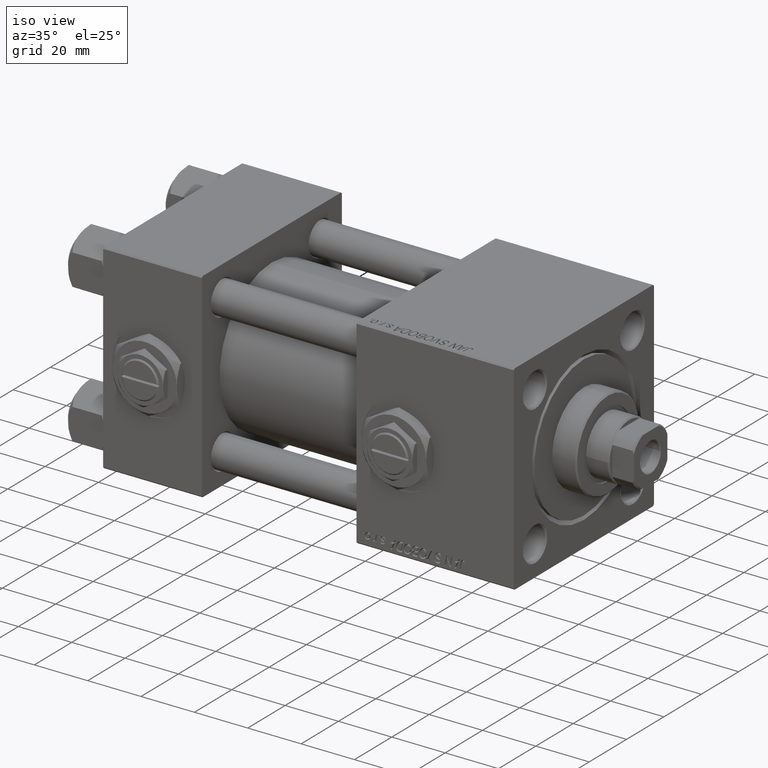
[diagram: clean part render]
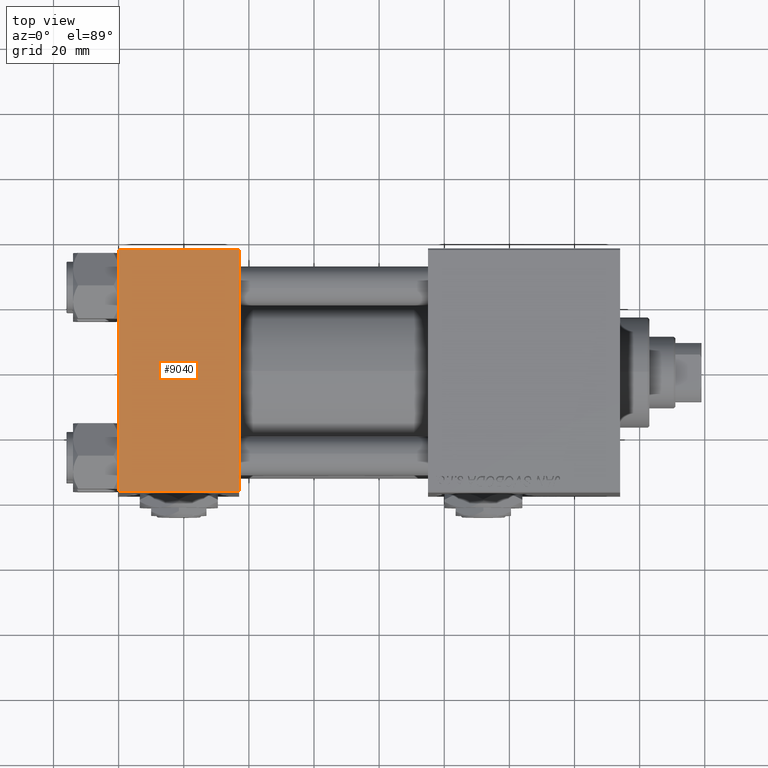
[diagram: tour spotlight — one face highlighted and labeled with its STEP entity id]
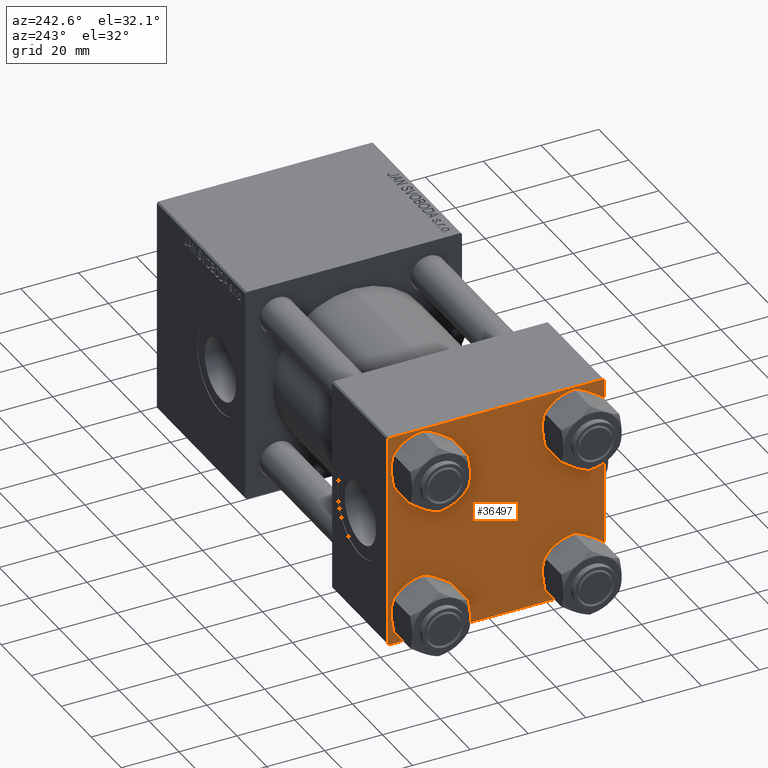
[diagram: tour spotlight — one face highlighted and labeled with its STEP entity id]
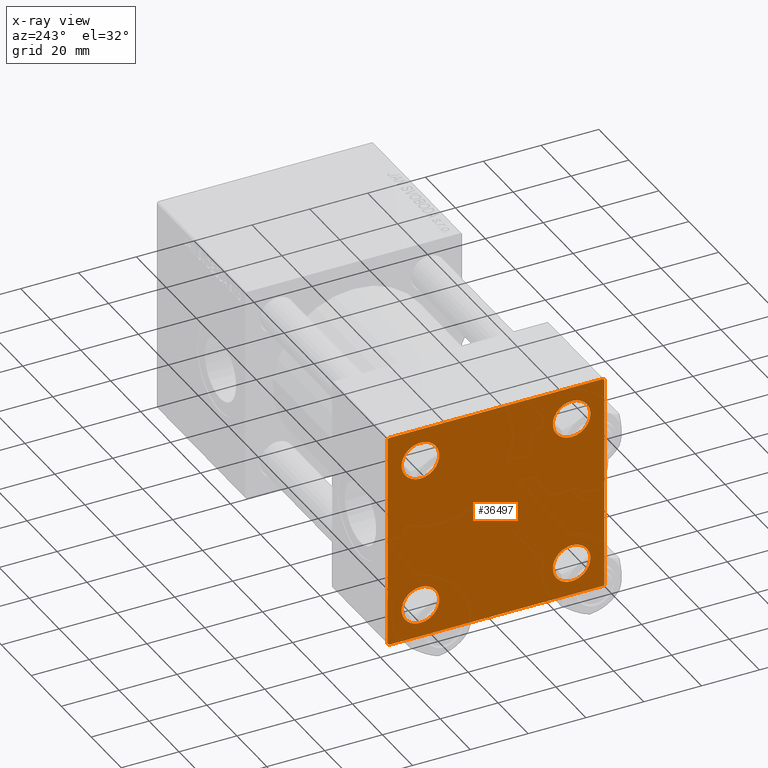
[diagram: x-ray of the same camera — body ghosted, this tour face saturated]
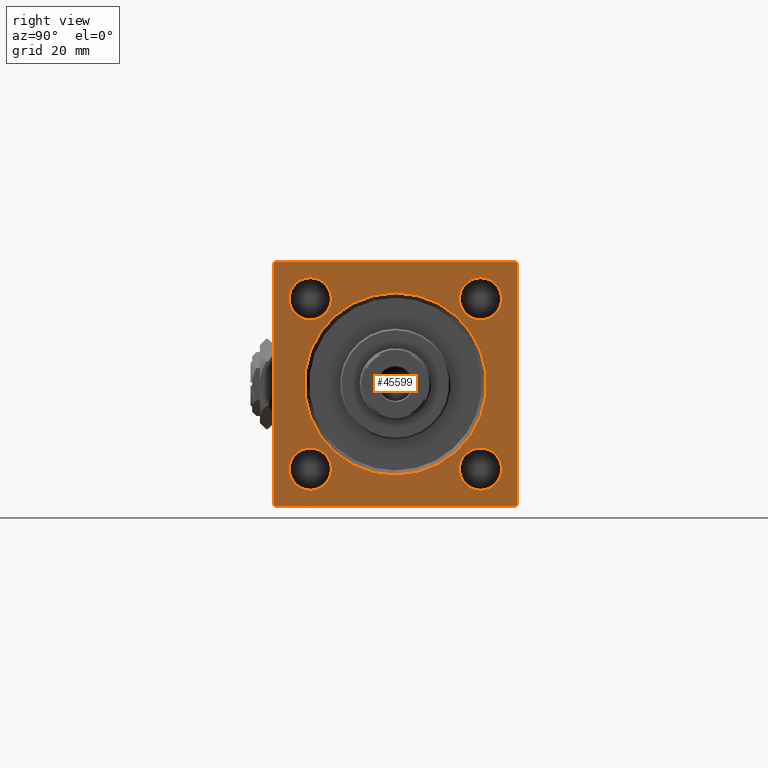
[diagram: tour spotlight — one face highlighted and labeled with its STEP entity id]
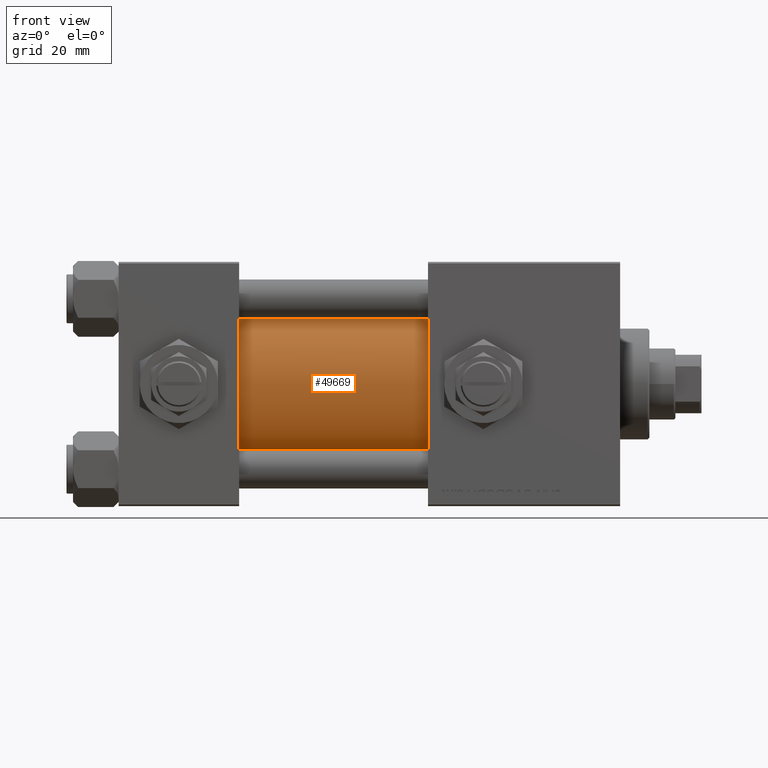
[diagram: tour spotlight — one face highlighted and labeled with its STEP entity id]
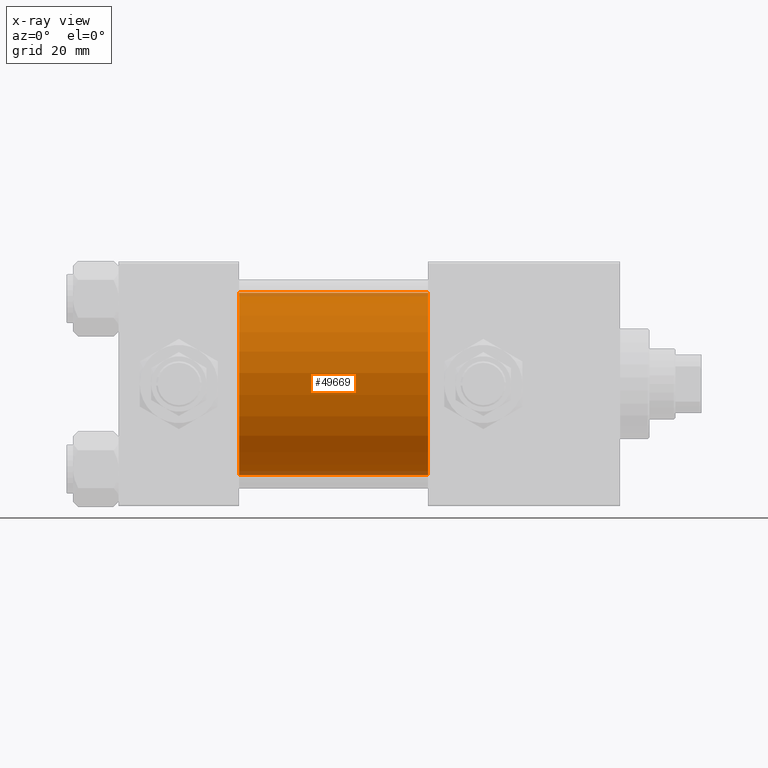
[diagram: x-ray of the same camera — body ghosted, this tour face saturated]
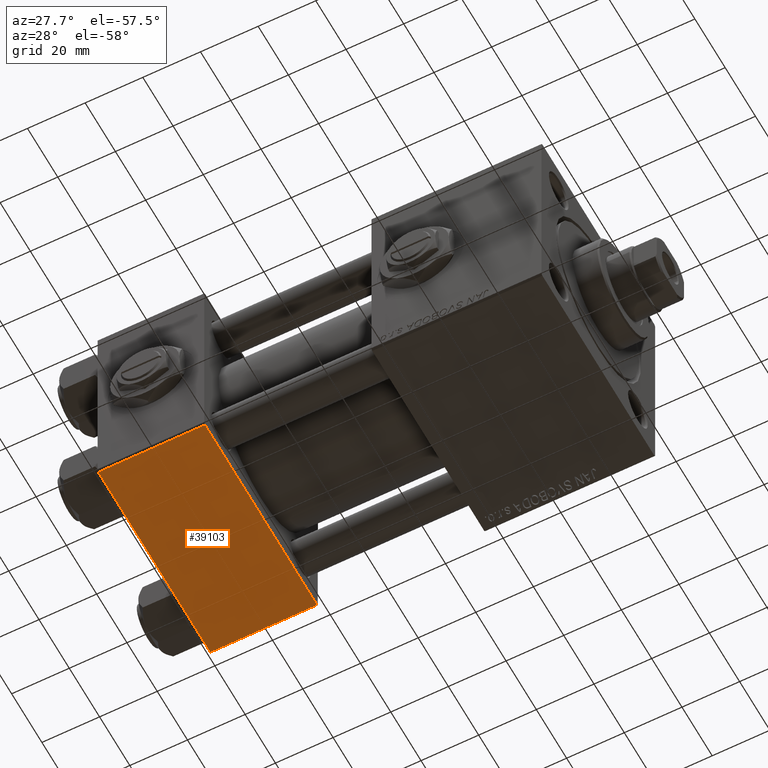
[diagram: tour spotlight — one face highlighted and labeled with its STEP entity id]
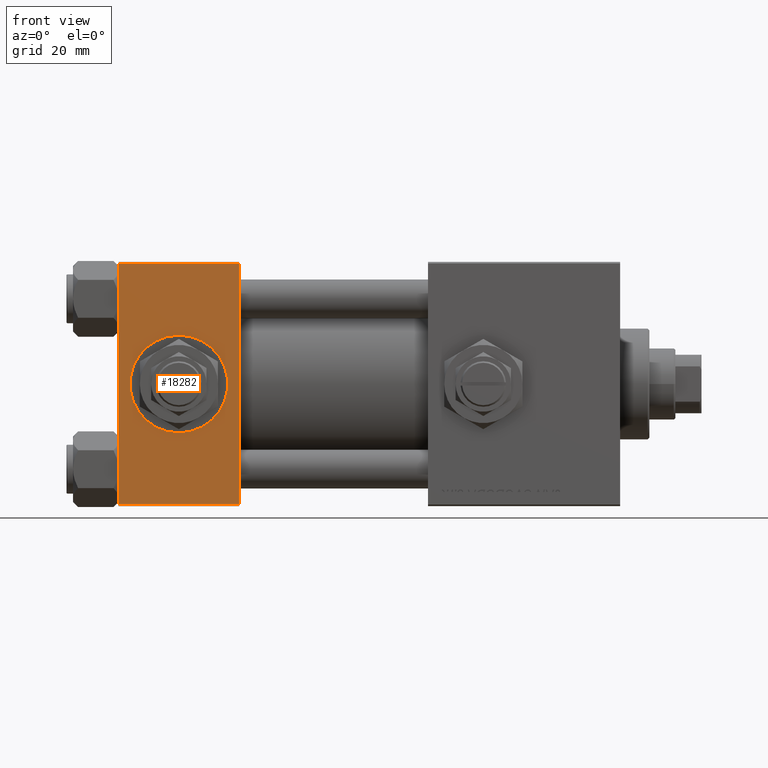
[diagram: tour spotlight — one face highlighted and labeled with its STEP entity id]
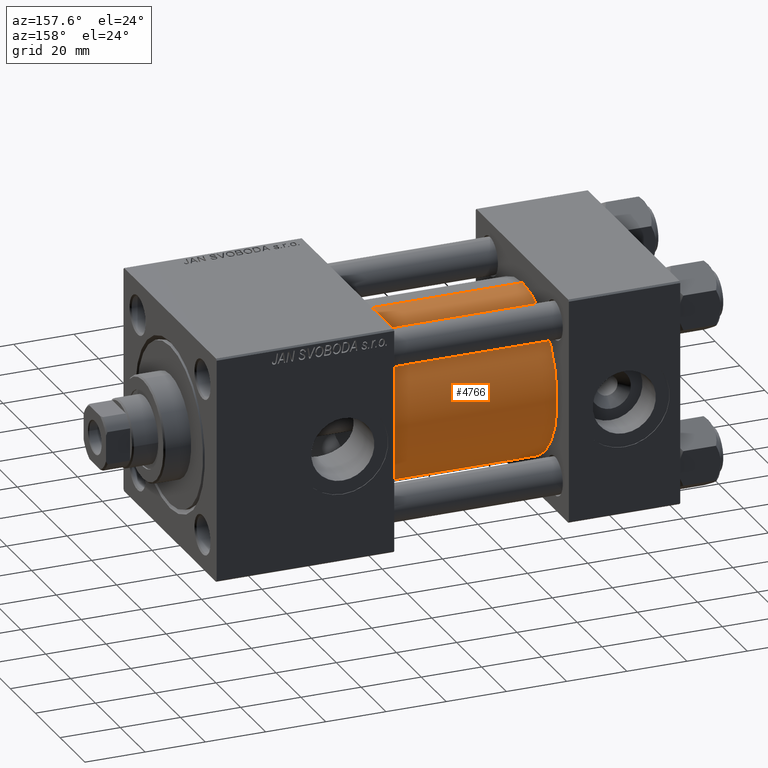
[diagram: tour spotlight — one face highlighted and labeled with its STEP entity id]
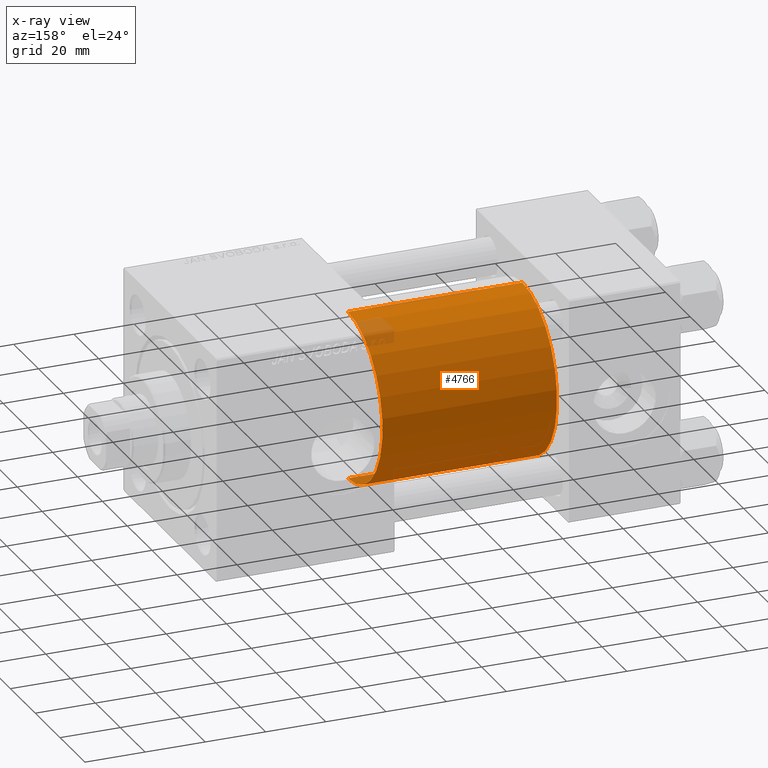
[diagram: x-ray of the same camera — body ghosted, this tour face saturated]
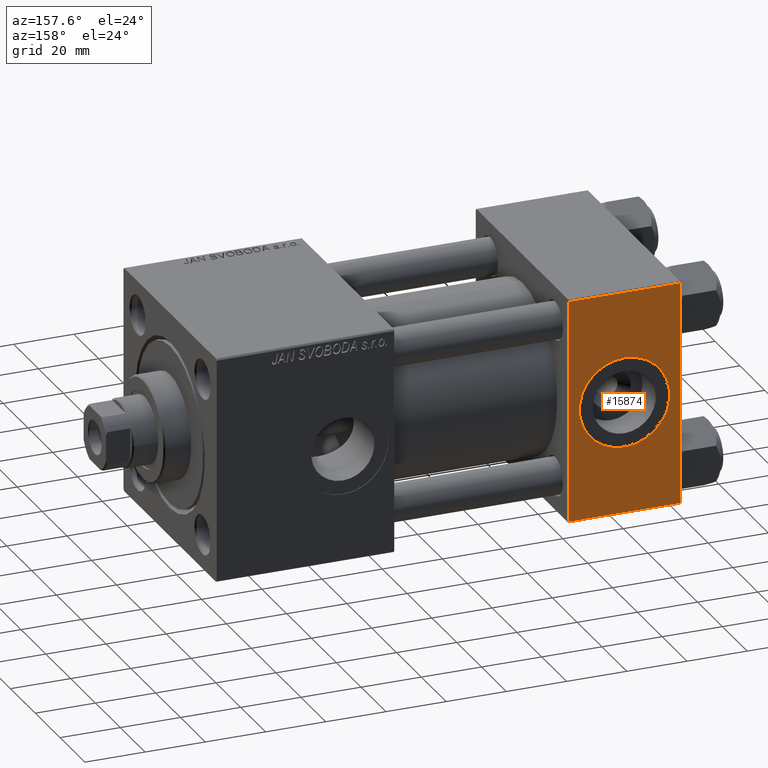
[diagram: tour spotlight — one face highlighted and labeled with its STEP entity id]
A machine part: a face-by-face anatomy tour. The part has 1249 B-rep faces; the first image is the clean iso view, then the 8 largest visible faces are spotlighted one at a time (largest first), each with its STEP entity span.

Face 1 — top view, entity #9040. In plain terms, the highlighted planar face has unit normal (0, 0, -1).
Definition (entity closure, byte-faithful):
#2199 = PLANE ( 'NONE',  #20352 ) ;
#2570 = DIRECTION ( 'NONE',  ( -1.000000000000000000, 0.000000000000000000, 0.000000000000000000 ) ) ;
#5193 = VECTOR ( 'NONE', #21330, 1000.000000000000000 ) ;
#5491 = VERTEX_POINT ( 'NONE', #33111 ) ;
#6286 = CARTESIAN_POINT ( 'NONE',  ( 37.00000000000000000, -37.00000000000000711, 37.49999999999999289 ) ) ;
#8993 = VERTEX_POINT ( 'NONE', #18019 ) ;
#9040 = ADVANCED_FACE ( 'NONE', ( #30697 ), #2199, .F. ) ;
#9267 = VERTEX_POINT ( 'NONE', #15770 ) ;
#10228 = LINE ( 'NONE', #34245, #20470 ) ;
#12065 = ORIENTED_EDGE ( 'NONE', *, *, #32104, .F. ) ;
#15770 = CARTESIAN_POINT ( 'NONE',  ( 0.000000000000000000, 36.99999999999999289, 37.50000000000000000 ) ) ;
#15808 = DIRECTION ( 'NONE',  ( 0.000000000000000000, -1.000000000000000000, -9.251858538542971581E-17 ) ) ;
#17245 = DIRECTION ( 'NONE',  ( 0.000000000000000000, -1.000000000000000000, -9.251858538542971581E-17 ) ) ;
#18019 = CARTESIAN_POINT ( 'NONE',  ( 37.00000000000000000, 36.99999999999999289, 37.50000000000000000 ) ) ;
#18262 = CARTESIAN_POINT ( 'NONE',  ( 37.00000000000000000, -37.00000000000000711, 37.49999999999999289 ) ) ;
#18287 = DIRECTION ( 'NONE',  ( 0.000000000000000000, 9.251858538542971581E-17, -1.000000000000000000 ) ) ;
#19577 = VERTEX_POINT ( 'NONE', #18262 ) ;
#20352 = AXIS2_PLACEMENT_3D ( 'NONE', #50740, #18287, #34396 ) ;
#20470 = VECTOR ( 'NONE', #2570, 1000.000000000000000 ) ;
#21330 = DIRECTION ( 'NONE',  ( 1.000000000000000000, 0.000000000000000000, 0.000000000000000000 ) ) ;
#22082 = ORIENTED_EDGE ( 'NONE', *, *, #32523, .T. ) ;
#22375 = LINE ( 'NONE', #6286, #5193 ) ;
#24587 = VECTOR ( 'NONE', #15808, 1000.000000000000000 ) ;
#24771 = CARTESIAN_POINT ( 'NONE',  ( 37.00000000000000000, 37.49999999999999289, 37.50000000000000000 ) ) ;
#26065 = ORIENTED_EDGE ( 'NONE', *, *, #28011, .T. ) ;
#28011 = EDGE_CURVE ( 'NONE', #5491, #19577, #22375, .T. ) ;
#29719 = VECTOR ( 'NONE', #17245, 1000.000000000000000 ) ;
#30697 = FACE_OUTER_BOUND ( 'NONE', #37196, .T. ) ;
#32104 = EDGE_CURVE ( 'NONE', #8993, #19577, #44314, .T. ) ;
#32523 = EDGE_CURVE ( 'NONE', #9267, #5491, #32813, .T. ) ;
#32813 = LINE ( 'NONE', #41270, #29719 ) ;
#33111 = CARTESIAN_POINT ( 'NONE',  ( 0.000000000000000000, -37.00000000000000711, 37.49999999999999289 ) ) ;
#34245 = CARTESIAN_POINT ( 'NONE',  ( 0.000000000000000000, 36.99999999999999289, 37.50000000000000000 ) ) ;
#34396 = DIRECTION ( 'NONE',  ( 0.000000000000000000, 1.000000000000000000, 9.251858538542971581E-17 ) ) ;
#35286 = EDGE_CURVE ( 'NONE', #8993, #9267, #10228, .T. ) ;
#37196 = EDGE_LOOP ( 'NONE', ( #22082, #26065, #12065, #45835 ) ) ;
#41270 = CARTESIAN_POINT ( 'NONE',  ( 0.000000000000000000, 37.49999999999999289, 37.50000000000000000 ) ) ;
#44314 = LINE ( 'NONE', #24771, #24587 ) ;
#45835 = ORIENTED_EDGE ( 'NONE', *, *, #35286, .T. ) ;
#50740 = CARTESIAN_POINT ( 'NONE',  ( 37.00000000000000000, 37.49999999999999289, 37.50000000000000000 ) ) ;

Face 2 — auxiliary view, entity #36497. An x-ray twin of the same camera follows (body ghosted, this face saturated) — the face is partly hidden behind the body. In plain terms, the highlighted planar face has unit normal (-1, 0, 0).
Definition (entity closure, byte-faithful):
#224 = LINE ( 'NONE', #8154, #45947 ) ;
#339 = ORIENTED_EDGE ( 'NONE', *, *, #51930, .T. ) ;
#372 = DIRECTION ( 'NONE',  ( 1.000000000000000000, -0.000000000000000000, 0.000000000000000000 ) ) ;
#1337 = VERTEX_POINT ( 'NONE', #45191 ) ;
#1638 = ORIENTED_EDGE ( 'NONE', *, *, #19780, .T. ) ;
#1765 = CARTESIAN_POINT ( 'NONE',  ( 0.000000000000000000, -37.50000000000000711, 36.99999999999999289 ) ) ;
#3147 = DIRECTION ( 'NONE',  ( 1.000000000000000000, -0.000000000000000000, 0.000000000000000000 ) ) ;
#3457 = EDGE_LOOP ( 'NONE', ( #51249, #42825, #11914, #339, #37818, #36396, #4561, #39693 ) ) ;
#4561 = ORIENTED_EDGE ( 'NONE', *, *, #32523, .F. ) ;
#5394 = EDGE_LOOP ( 'NONE', ( #30672, #6402 ) ) ;
#5491 = VERTEX_POINT ( 'NONE', #33111 ) ;
#5787 = CIRCLE ( 'NONE', #14125, 6.500000000000023093 ) ;
#5988 = CARTESIAN_POINT ( 'NONE',  ( 0.000000000000000000, 26.14999999999999858, -19.64999999999998792 ) ) ;
#6066 = DIRECTION ( 'NONE',  ( 0.000000000000000000, -0.7071067811865524577, 0.7071067811865426878 ) ) ;
#6402 = ORIENTED_EDGE ( 'NONE', *, *, #17768, .T. ) ;
#6446 = ORIENTED_EDGE ( 'NONE', *, *, #21966, .T. ) ;
#6663 = VERTEX_POINT ( 'NONE', #21518 ) ;
#6992 = VERTEX_POINT ( 'NONE', #16328 ) ;
#7392 = EDGE_CURVE ( 'NONE', #13342, #47746, #35491, .T. ) ;
#7902 = CIRCLE ( 'NONE', #39118, 6.500000000000023093 ) ;
#8154 = CARTESIAN_POINT ( 'NONE',  ( 0.000000000000000000, -37.50000000000000711, 37.49999999999999289 ) ) ;
#8991 = CARTESIAN_POINT ( 'NONE',  ( 0.000000000000000000, 36.99999999999997868, -37.50000000000000000 ) ) ;
#9267 = VERTEX_POINT ( 'NONE', #15770 ) ;
#9554 = DIRECTION ( 'NONE',  ( 0.000000000000000000, 0.000000000000000000, -1.000000000000000000 ) ) ;
#10442 = FACE_BOUND ( 'NONE', #52210, .T. ) ;
#10692 = DIRECTION ( 'NONE',  ( 1.000000000000000000, -0.000000000000000000, 0.000000000000000000 ) ) ;
#11687 = DIRECTION ( 'NONE',  ( 0.000000000000000000, 0.7071067811865474617, -0.7071067811865474617 ) ) ;
#11914 = ORIENTED_EDGE ( 'NONE', *, *, #35048, .T. ) ;
#12037 = CARTESIAN_POINT ( 'NONE',  ( 0.000000000000000000, -37.00000000000002132, -37.50000000000000711 ) ) ;
#12785 = ORIENTED_EDGE ( 'NONE', *, *, #22402, .T. ) ;
#13145 = AXIS2_PLACEMENT_3D ( 'NONE', #39815, #19742, #35856 ) ;
#13249 = LINE ( 'NONE', #29355, #29160 ) ;
#13272 = CARTESIAN_POINT ( 'NONE',  ( 0.000000000000000000, 26.14999999999999858, 26.15000000000000213 ) ) ;
#13342 = VERTEX_POINT ( 'NONE', #48315 ) ;
#14121 = FACE_OUTER_BOUND ( 'NONE', #3457, .T. ) ;
#14125 = AXIS2_PLACEMENT_3D ( 'NONE', #47493, #30615, #46977 ) ;
#15770 = CARTESIAN_POINT ( 'NONE',  ( 0.000000000000000000, 36.99999999999999289, 37.50000000000000000 ) ) ;
#16189 = DIRECTION ( 'NONE',  ( 1.000000000000000000, -0.000000000000000000, 0.000000000000000000 ) ) ;
#16328 = CARTESIAN_POINT ( 'NONE',  ( 0.000000000000000000, -26.14999999999999147, 32.65000000000003411 ) ) ;
#16479 = DIRECTION ( 'NONE',  ( 0.000000000000000000, 0.000000000000000000, 1.000000000000000000 ) ) ;
#17245 = DIRECTION ( 'NONE',  ( 0.000000000000000000, -1.000000000000000000, -9.251858538542971581E-17 ) ) ;
#17768 = EDGE_CURVE ( 'NONE', #49569, #44081, #33171, .T. ) ;
#17981 = AXIS2_PLACEMENT_3D ( 'NONE', #30226, #38688, #46324 ) ;
#18340 = FACE_BOUND ( 'NONE', #5394, .T. ) ;
#18492 = AXIS2_PLACEMENT_3D ( 'NONE', #37993, #22397, #26624 ) ;
#18974 = LINE ( 'NONE', #34295, #47207 ) ;
#19326 = CARTESIAN_POINT ( 'NONE',  ( 0.000000000000000000, 26.14999999999999858, -32.65000000000001990 ) ) ;
#19517 = AXIS2_PLACEMENT_3D ( 'NONE', #51051, #10692, #26780 ) ;
#19609 = CARTESIAN_POINT ( 'NONE',  ( 0.000000000000000000, 37.24999999999999289, 37.24999999999999289 ) ) ;
#19653 = VECTOR ( 'NONE', #33267, 1000.000000000000000 ) ;
#19742 = DIRECTION ( 'NONE',  ( 1.000000000000000000, -0.000000000000000000, 0.000000000000000000 ) ) ;
#19780 = EDGE_CURVE ( 'NONE', #6992, #27374, #5787, .T. ) ;
#19925 = CARTESIAN_POINT ( 'NONE',  ( 0.000000000000000000, -26.14999999999999147, 26.15000000000000924 ) ) ;
#20054 = CARTESIAN_POINT ( 'NONE',  ( 0.000000000000000000, 26.14999999999999858, 19.64999999999998437 ) ) ;
#20277 = AXIS2_PLACEMENT_3D ( 'NONE', #45553, #41079, #20744 ) ;
#20735 = ORIENTED_EDGE ( 'NONE', *, *, #7392, .T. ) ;
#20744 = DIRECTION ( 'NONE',  ( 0.000000000000000000, 0.000000000000000000, 1.000000000000000000 ) ) ;
#21046 = CARTESIAN_POINT ( 'NONE',  ( 0.000000000000000000, 37.49999999999999289, -36.99999999999998579 ) ) ;
#21450 = CARTESIAN_POINT ( 'NONE',  ( 0.000000000000000000, -26.14999999999999147, 19.64999999999999147 ) ) ;
#21518 = CARTESIAN_POINT ( 'NONE',  ( 0.000000000000000000, 37.49999999999999289, 37.00000000000000000 ) ) ;
#21891 = CARTESIAN_POINT ( 'NONE',  ( 0.000000000000000000, -37.24999999999975842, -37.25000000000027001 ) ) ;
#21966 = EDGE_CURVE ( 'NONE', #47883, #28582, #27766, .T. ) ;
#22043 = FACE_BOUND ( 'NONE', #42711, .T. ) ;
#22397 = DIRECTION ( 'NONE',  ( 1.000000000000000000, -0.000000000000000000, 0.000000000000000000 ) ) ;
#22402 = EDGE_CURVE ( 'NONE', #27374, #6992, #48812, .T. ) ;
#22999 = LINE ( 'NONE', #46758, #37611 ) ;
#23106 = CARTESIAN_POINT ( 'NONE',  ( 0.000000000000000000, 26.14999999999999858, 32.65000000000002700 ) ) ;
#24526 = EDGE_CURVE ( 'NONE', #47937, #5491, #18974, .T. ) ;
#25864 = LINE ( 'NONE', #21891, #33415 ) ;
#26624 = DIRECTION ( 'NONE',  ( 0.000000000000000000, 0.000000000000000000, 1.000000000000000000 ) ) ;
#26635 = CARTESIAN_POINT ( 'NONE',  ( 0.000000000000000000, -26.14999999999999147, -32.65000000000002700 ) ) ;
#26780 = DIRECTION ( 'NONE',  ( 0.000000000000000000, 0.000000000000000000, 1.000000000000000000 ) ) ;
#26787 = PLANE ( 'NONE',  #17981 ) ;
#26962 = VERTEX_POINT ( 'NONE', #12037 ) ;
#27170 = EDGE_CURVE ( 'NONE', #47746, #13342, #46485, .T. ) ;
#27374 = VERTEX_POINT ( 'NONE', #21450 ) ;
#27504 = CIRCLE ( 'NONE', #13145, 6.500000000000015987 ) ;
#27766 = CIRCLE ( 'NONE', #18492, 6.500000000000015987 ) ;
#28582 = VERTEX_POINT ( 'NONE', #19326 ) ;
#28737 = ORIENTED_EDGE ( 'NONE', *, *, #49759, .T. ) ;
#29046 = CARTESIAN_POINT ( 'NONE',  ( 0.000000000000000000, 37.49999999999999289, -37.50000000000000000 ) ) ;
#29160 = VECTOR ( 'NONE', #9554, 1000.000000000000000 ) ;
#29355 = CARTESIAN_POINT ( 'NONE',  ( 0.000000000000000000, 37.49999999999999289, 37.50000000000000000 ) ) ;
#29719 = VECTOR ( 'NONE', #17245, 1000.000000000000000 ) ;
#29843 = ORIENTED_EDGE ( 'NONE', *, *, #27170, .T. ) ;
#30189 = VERTEX_POINT ( 'NONE', #21046 ) ;
#30226 = CARTESIAN_POINT ( 'NONE',  ( 0.000000000000000000, 0.000000000000000000, 0.000000000000000000 ) ) ;
#30615 = DIRECTION ( 'NONE',  ( 1.000000000000000000, -0.000000000000000000, 0.000000000000000000 ) ) ;
#30672 = ORIENTED_EDGE ( 'NONE', *, *, #35815, .T. ) ;
#31111 = DIRECTION ( 'NONE',  ( -0.000000000000000000, 0.7071067811865474617, 0.7071067811865474617 ) ) ;
#31403 = VERTEX_POINT ( 'NONE', #8991 ) ;
#31631 = CARTESIAN_POINT ( 'NONE',  ( 0.000000000000000000, 26.14999999999999858, 26.15000000000000213 ) ) ;
#32425 = DIRECTION ( 'NONE',  ( 0.000000000000000000, 9.251858538542971581E-17, -1.000000000000000000 ) ) ;
#32523 = EDGE_CURVE ( 'NONE', #9267, #5491, #32813, .T. ) ;
#32813 = LINE ( 'NONE', #41270, #29719 ) ;
#33001 = LINE ( 'NONE', #29046, #19653 ) ;
#33111 = CARTESIAN_POINT ( 'NONE',  ( 0.000000000000000000, -37.00000000000000711, 37.49999999999999289 ) ) ;
#33171 = CIRCLE ( 'NONE', #44999, 6.500000000000023093 ) ;
#33267 = DIRECTION ( 'NONE',  ( 0.000000000000000000, -1.000000000000000000, -9.251858538542972814E-17 ) ) ;
#33415 = VECTOR ( 'NONE', #6066, 1000.000000000000000 ) ;
#34295 = CARTESIAN_POINT ( 'NONE',  ( -0.000000000000000000, -37.25000000000000000, 37.25000000000000000 ) ) ;
#34937 = LINE ( 'NONE', #19609, #39466 ) ;
#35048 = EDGE_CURVE ( 'NONE', #31403, #26962, #33001, .T. ) ;
#35491 = CIRCLE ( 'NONE', #20277, 6.500000000000015987 ) ;
#35815 = EDGE_CURVE ( 'NONE', #44081, #49569, #7902, .T. ) ;
#35856 = DIRECTION ( 'NONE',  ( 0.000000000000000000, 0.000000000000000000, 1.000000000000000000 ) ) ;
#36396 = ORIENTED_EDGE ( 'NONE', *, *, #24526, .T. ) ;
#36497 = ADVANCED_FACE ( 'NONE', ( #22043, #50795, #10442, #18340, #14121 ), #26787, .T. ) ;
#37611 = VECTOR ( 'NONE', #50440, 1000.000000000000114 ) ;
#37818 = ORIENTED_EDGE ( 'NONE', *, *, #42852, .F. ) ;
#37993 = CARTESIAN_POINT ( 'NONE',  ( 0.000000000000000000, 26.14999999999999858, -26.15000000000000213 ) ) ;
#38688 = DIRECTION ( 'NONE',  ( -1.000000000000000000, 0.000000000000000000, -0.000000000000000000 ) ) ;
#39118 = AXIS2_PLACEMENT_3D ( 'NONE', #13272, #16189, #44954 ) ;
#39466 = VECTOR ( 'NONE', #11687, 1000.000000000000114 ) ;
#39693 = ORIENTED_EDGE ( 'NONE', *, *, #47020, .T. ) ;
#39815 = CARTESIAN_POINT ( 'NONE',  ( 0.000000000000000000, 26.14999999999999858, -26.15000000000000213 ) ) ;
#41079 = DIRECTION ( 'NONE',  ( 1.000000000000000000, -0.000000000000000000, 0.000000000000000000 ) ) ;
#41262 = AXIS2_PLACEMENT_3D ( 'NONE', #19925, #372, #16479 ) ;
#41270 = CARTESIAN_POINT ( 'NONE',  ( 0.000000000000000000, 37.49999999999999289, 37.50000000000000000 ) ) ;
#42711 = EDGE_LOOP ( 'NONE', ( #1638, #12785 ) ) ;
#42825 = ORIENTED_EDGE ( 'NONE', *, *, #50199, .T. ) ;
#42852 = EDGE_CURVE ( 'NONE', #47937, #1337, #224, .T. ) ;
#43772 = DIRECTION ( 'NONE',  ( 0.000000000000000000, 0.000000000000000000, 1.000000000000000000 ) ) ;
#44081 = VERTEX_POINT ( 'NONE', #23106 ) ;
#44954 = DIRECTION ( 'NONE',  ( 0.000000000000000000, 0.000000000000000000, 1.000000000000000000 ) ) ;
#44999 = AXIS2_PLACEMENT_3D ( 'NONE', #31631, #3147, #43772 ) ;
#45191 = CARTESIAN_POINT ( 'NONE',  ( 0.000000000000000000, -37.50000000000000000, -37.00000000000003553 ) ) ;
#45553 = CARTESIAN_POINT ( 'NONE',  ( 0.000000000000000000, -26.14999999999999147, -26.15000000000000924 ) ) ;
#45947 = VECTOR ( 'NONE', #32425, 1000.000000000000000 ) ;
#46324 = DIRECTION ( 'NONE',  ( -0.000000000000000000, 0.000000000000000000, 1.000000000000000000 ) ) ;
#46485 = CIRCLE ( 'NONE', #19517, 6.500000000000015987 ) ;
#46758 = CARTESIAN_POINT ( 'NONE',  ( 0.000000000000000000, 37.24999999999998579, -37.24999999999998579 ) ) ;
#46977 = DIRECTION ( 'NONE',  ( 0.000000000000000000, 0.000000000000000000, 1.000000000000000000 ) ) ;
#47020 = EDGE_CURVE ( 'NONE', #9267, #6663, #34937, .T. ) ;
#47207 = VECTOR ( 'NONE', #31111, 1000.000000000000114 ) ;
#47493 = CARTESIAN_POINT ( 'NONE',  ( 0.000000000000000000, -26.14999999999999147, 26.15000000000000924 ) ) ;
#47746 = VERTEX_POINT ( 'NONE', #26635 ) ;
#47883 = VERTEX_POINT ( 'NONE', #5988 ) ;
#47937 = VERTEX_POINT ( 'NONE', #1765 ) ;
#48315 = CARTESIAN_POINT ( 'NONE',  ( 0.000000000000000000, -26.14999999999999147, -19.64999999999999503 ) ) ;
#48812 = CIRCLE ( 'NONE', #41262, 6.500000000000023093 ) ;
#49569 = VERTEX_POINT ( 'NONE', #20054 ) ;
#49759 = EDGE_CURVE ( 'NONE', #28582, #47883, #27504, .T. ) ;
#50171 = EDGE_CURVE ( 'NONE', #6663, #30189, #13249, .T. ) ;
#50199 = EDGE_CURVE ( 'NONE', #30189, #31403, #22999, .T. ) ;
#50440 = DIRECTION ( 'NONE',  ( -0.000000000000000000, -0.7071067811865474617, -0.7071067811865474617 ) ) ;
#50795 = FACE_BOUND ( 'NONE', #51807, .T. ) ;
#51051 = CARTESIAN_POINT ( 'NONE',  ( 0.000000000000000000, -26.14999999999999147, -26.15000000000000924 ) ) ;
#51249 = ORIENTED_EDGE ( 'NONE', *, *, #50171, .T. ) ;
#51807 = EDGE_LOOP ( 'NONE', ( #20735, #29843 ) ) ;
#51930 = EDGE_CURVE ( 'NONE', #26962, #1337, #25864, .T. ) ;
#52210 = EDGE_LOOP ( 'NONE', ( #6446, #28737 ) ) ;

Face 3 — right view, entity #45599. In plain terms, the highlighted planar face has unit normal (-1, 0, 0).
Definition (entity closure, byte-faithful):
#118 = CIRCLE ( 'NONE', #28813, 27.99999999999999645 ) ;
#512 = DIRECTION ( 'NONE',  ( -1.000000000000000000, -0.000000000000000000, 0.000000000000000000 ) ) ;
#828 = FACE_BOUND ( 'NONE', #23417, .T. ) ;
#1078 = CARTESIAN_POINT ( 'NONE',  ( 154.0000000000000000, -36.99999999999998579, -37.50000000000000000 ) ) ;
#1822 = EDGE_CURVE ( 'NONE', #8081, #28154, #17914, .T. ) ;
#1921 = EDGE_LOOP ( 'NONE', ( #17145, #13700 ) ) ;
#2054 = CARTESIAN_POINT ( 'NONE',  ( 154.0000000000000000, 37.50000000000000000, -37.50000000000000000 ) ) ;
#2339 = EDGE_CURVE ( 'NONE', #40421, #40888, #14817, .T. ) ;
#2579 = CARTESIAN_POINT ( 'NONE',  ( 154.0000000000000000, 37.50000000000000000, -36.99999999999999289 ) ) ;
#3046 = VECTOR ( 'NONE', #6939, 1000.000000000000000 ) ;
#3083 = AXIS2_PLACEMENT_3D ( 'NONE', #14202, #26350, #42462 ) ;
#3150 = CARTESIAN_POINT ( 'NONE',  ( 154.0000000000000000, -26.15000000000000213, -26.15000000000000213 ) ) ;
#3647 = VERTEX_POINT ( 'NONE', #9052 ) ;
#3787 = LINE ( 'NONE', #35994, #38859 ) ;
#3800 = LINE ( 'NONE', #7750, #13547 ) ;
#4623 = AXIS2_PLACEMENT_3D ( 'NONE', #20493, #36880, #28428 ) ;
#5275 = DIRECTION ( 'NONE',  ( -1.000000000000000000, -0.000000000000000000, 0.000000000000000000 ) ) ;
#5653 = EDGE_CURVE ( 'NONE', #45938, #6639, #16863, .T. ) ;
#5937 = AXIS2_PLACEMENT_3D ( 'NONE', #44599, #512, #48810 ) ;
#6639 = VERTEX_POINT ( 'NONE', #30749 ) ;
#6848 = DIRECTION ( 'NONE',  ( 0.000000000000000000, 0.000000000000000000, 1.000000000000000000 ) ) ;
#6939 = DIRECTION ( 'NONE',  ( 0.000000000000000000, 0.7071067811865671127, -0.7071067811865279218 ) ) ;
#7242 = EDGE_CURVE ( 'NONE', #38690, #16812, #22639, .T. ) ;
#7363 = DIRECTION ( 'NONE',  ( -1.000000000000000000, -0.000000000000000000, 0.000000000000000000 ) ) ;
#7709 = AXIS2_PLACEMENT_3D ( 'NONE', #26650, #7363, #6848 ) ;
#7750 = CARTESIAN_POINT ( 'NONE',  ( 154.0000000000000000, 37.50000000000000000, -36.99999999999999289 ) ) ;
#7764 = ORIENTED_EDGE ( 'NONE', *, *, #48587, .T. ) ;
#7999 = CIRCLE ( 'NONE', #22318, 6.500000000000002665 ) ;
#8081 = VERTEX_POINT ( 'NONE', #29335 ) ;
#8880 = VERTEX_POINT ( 'NONE', #32823 ) ;
#9052 = CARTESIAN_POINT ( 'NONE',  ( 154.0000000000000000, 26.14999999999999858, -32.64999999999998437 ) ) ;
#9194 = VECTOR ( 'NONE', #11126, 1000.000000000000000 ) ;
#9220 = EDGE_CURVE ( 'NONE', #41017, #45124, #118, .T. ) ;
#9286 = CARTESIAN_POINT ( 'NONE',  ( 154.0000000000000000, 26.14999999999999858, -19.65000000000002345 ) ) ;
#10012 = VECTOR ( 'NONE', #34024, 1000.000000000000000 ) ;
#11099 = CARTESIAN_POINT ( 'NONE',  ( 154.0000000000000000, -36.99999999999997158, 37.49999999999997868 ) ) ;
#11107 = DIRECTION ( 'NONE',  ( -1.000000000000000000, -0.000000000000000000, 0.000000000000000000 ) ) ;
#11126 = DIRECTION ( 'NONE',  ( 0.000000000000000000, -1.000000000000000000, -1.850371707708594316E-16 ) ) ;
#11722 = ORIENTED_EDGE ( 'NONE', *, *, #35126, .T. ) ;
#12487 = DIRECTION ( 'NONE',  ( 0.000000000000000000, 0.000000000000000000, 1.000000000000000000 ) ) ;
#13188 = DIRECTION ( 'NONE',  ( 0.000000000000000000, 0.000000000000000000, 1.000000000000000000 ) ) ;
#13280 = DIRECTION ( 'NONE',  ( -1.000000000000000000, -0.000000000000000000, 0.000000000000000000 ) ) ;
#13547 = VECTOR ( 'NONE', #40217, 999.9999999999998863 ) ;
#13669 = CIRCLE ( 'NONE', #44040, 27.99999999999999645 ) ;
#13700 = ORIENTED_EDGE ( 'NONE', *, *, #42265, .T. ) ;
#13840 = VERTEX_POINT ( 'NONE', #50789 ) ;
#14202 = CARTESIAN_POINT ( 'NONE',  ( 154.0000000000000000, 0.000000000000000000, 0.000000000000000000 ) ) ;
#14473 = DIRECTION ( 'NONE',  ( 0.000000000000000000, 0.000000000000000000, 1.000000000000000000 ) ) ;
#14727 = FACE_BOUND ( 'NONE', #30163, .T. ) ;
#14817 = LINE ( 'NONE', #30922, #9194 ) ;
#15660 = AXIS2_PLACEMENT_3D ( 'NONE', #3150, #30077, #46432 ) ;
#15865 = VERTEX_POINT ( 'NONE', #27684 ) ;
#16812 = VERTEX_POINT ( 'NONE', #1078 ) ;
#16863 = CIRCLE ( 'NONE', #5937, 6.499999999999974243 ) ;
#17145 = ORIENTED_EDGE ( 'NONE', *, *, #30873, .T. ) ;
#17799 = CIRCLE ( 'NONE', #7709, 6.500000000000002665 ) ;
#17914 = LINE ( 'NONE', #26102, #10012 ) ;
#18817 = CARTESIAN_POINT ( 'NONE',  ( 154.0000000000000000, -26.14999999999999147, 32.64999999999999858 ) ) ;
#19080 = LINE ( 'NONE', #43873, #3046 ) ;
#19139 = ORIENTED_EDGE ( 'NONE', *, *, #1822, .F. ) ;
#19394 = EDGE_CURVE ( 'NONE', #38690, #28154, #3800, .T. ) ;
#19660 = CARTESIAN_POINT ( 'NONE',  ( 154.0000000000000000, -26.15000000000000213, -32.64999999999998437 ) ) ;
#20493 = CARTESIAN_POINT ( 'NONE',  ( 154.0000000000000000, 26.14999999999999858, 26.15000000000000213 ) ) ;
#20622 = CIRCLE ( 'NONE', #4623, 6.500000000000008882 ) ;
#20793 = LINE ( 'NONE', #29511, #36539 ) ;
#21084 = EDGE_LOOP ( 'NONE', ( #11722, #49508, #31684, #27625, #19139, #31446, #29358, #39141 ) ) ;
#21207 = VERTEX_POINT ( 'NONE', #18817 ) ;
#21367 = CARTESIAN_POINT ( 'NONE',  ( 154.0000000000000000, 26.14999999999999858, -26.15000000000000213 ) ) ;
#21744 = CARTESIAN_POINT ( 'NONE',  ( 154.0000000000000000, 37.00000000000000000, -37.50000000000000000 ) ) ;
#22122 = FACE_BOUND ( 'NONE', #46817, .T. ) ;
#22128 = DIRECTION ( 'NONE',  ( -1.000000000000000000, -0.000000000000000000, 0.000000000000000000 ) ) ;
#22318 = AXIS2_PLACEMENT_3D ( 'NONE', #47259, #11107, #28433 ) ;
#22639 = LINE ( 'NONE', #2054, #38848 ) ;
#23417 = EDGE_LOOP ( 'NONE', ( #26014, #51732 ) ) ;
#24790 = ORIENTED_EDGE ( 'NONE', *, *, #38078, .T. ) ;
#24918 = DIRECTION ( 'NONE',  ( 0.000000000000000000, 0.000000000000000000, 1.000000000000000000 ) ) ;
#25281 = EDGE_CURVE ( 'NONE', #40888, #15865, #3787, .T. ) ;
#26014 = ORIENTED_EDGE ( 'NONE', *, *, #38100, .T. ) ;
#26102 = CARTESIAN_POINT ( 'NONE',  ( 154.0000000000000000, 37.50000000000000000, 37.49999999999999289 ) ) ;
#26350 = DIRECTION ( 'NONE',  ( -1.000000000000000000, -0.000000000000000000, 0.000000000000000000 ) ) ;
#26650 = CARTESIAN_POINT ( 'NONE',  ( 154.0000000000000000, -26.14999999999999147, 26.14999999999999503 ) ) ;
#26948 = DIRECTION ( 'NONE',  ( 0.000000000000000000, 0.000000000000000000, 1.000000000000000000 ) ) ;
#27625 = ORIENTED_EDGE ( 'NONE', *, *, #19394, .T. ) ;
#27684 = CARTESIAN_POINT ( 'NONE',  ( 154.0000000000000000, -37.50000000000000000, 36.99999999999995026 ) ) ;
#28154 = VERTEX_POINT ( 'NONE', #2579 ) ;
#28212 = CARTESIAN_POINT ( 'NONE',  ( 154.0000000000000000, -37.50000000000000000, 37.49999999999997868 ) ) ;
#28428 = DIRECTION ( 'NONE',  ( 0.000000000000000000, 0.000000000000000000, 1.000000000000000000 ) ) ;
#28433 = DIRECTION ( 'NONE',  ( 0.000000000000000000, 0.000000000000000000, 1.000000000000000000 ) ) ;
#28813 = AXIS2_PLACEMENT_3D ( 'NONE', #30057, #22128, #14473 ) ;
#29335 = CARTESIAN_POINT ( 'NONE',  ( 154.0000000000000000, 37.50000000000000000, 36.99999999999999289 ) ) ;
#29358 = ORIENTED_EDGE ( 'NONE', *, *, #2339, .T. ) ;
#29511 = CARTESIAN_POINT ( 'NONE',  ( 154.0000000000000000, 37.00000000000000000, 37.49999999999999289 ) ) ;
#30043 = CARTESIAN_POINT ( 'NONE',  ( 154.0000000000000000, 37.00000000000000000, 37.49999999999999289 ) ) ;
#30057 = CARTESIAN_POINT ( 'NONE',  ( 154.0000000000000000, 0.000000000000000000, 0.000000000000000000 ) ) ;
#30077 = DIRECTION ( 'NONE',  ( -1.000000000000000000, -0.000000000000000000, 0.000000000000000000 ) ) ;
#30163 = EDGE_LOOP ( 'NONE', ( #32622, #48798 ) ) ;
#30749 = CARTESIAN_POINT ( 'NONE',  ( 154.0000000000000000, -26.15000000000000213, -19.65000000000002345 ) ) ;
#30873 = EDGE_CURVE ( 'NONE', #41268, #21207, #17799, .T. ) ;
#30922 = CARTESIAN_POINT ( 'NONE',  ( 154.0000000000000000, 37.50000000000000000, 37.49999999999999289 ) ) ;
#31085 = CARTESIAN_POINT ( 'NONE',  ( 154.0000000000000000, -26.14999999999999147, 19.64999999999999503 ) ) ;
#31446 = ORIENTED_EDGE ( 'NONE', *, *, #35185, .T. ) ;
#31448 = VECTOR ( 'NONE', #31646, 1000.000000000000000 ) ;
#31646 = DIRECTION ( 'NONE',  ( 0.000000000000000000, -9.251858538542972814E-17, -1.000000000000000000 ) ) ;
#31684 = ORIENTED_EDGE ( 'NONE', *, *, #7242, .F. ) ;
#32483 = AXIS2_PLACEMENT_3D ( 'NONE', #47884, #44447, #24918 ) ;
#32500 = EDGE_CURVE ( 'NONE', #45124, #41017, #13669, .T. ) ;
#32622 = ORIENTED_EDGE ( 'NONE', *, *, #9220, .T. ) ;
#32823 = CARTESIAN_POINT ( 'NONE',  ( 154.0000000000000000, 26.14999999999999858, 32.65000000000001279 ) ) ;
#33047 = CARTESIAN_POINT ( 'NONE',  ( 154.0000000000000000, 3.429011037612588881E-15, 27.99999999999999645 ) ) ;
#34024 = DIRECTION ( 'NONE',  ( 0.000000000000000000, 0.000000000000000000, -1.000000000000000000 ) ) ;
#34271 = FACE_BOUND ( 'NONE', #40720, .T. ) ;
#35035 = CIRCLE ( 'NONE', #32483, 6.499999999999974243 ) ;
#35126 = EDGE_CURVE ( 'NONE', #15865, #45051, #52206, .T. ) ;
#35185 = EDGE_CURVE ( 'NONE', #8081, #40421, #20793, .T. ) ;
#35193 = CARTESIAN_POINT ( 'NONE',  ( 154.0000000000000000, -37.50000000000000711, -37.00000000000000711 ) ) ;
#35994 = CARTESIAN_POINT ( 'NONE',  ( 154.0000000000000000, -37.50000000000000000, 36.99999999999995026 ) ) ;
#36539 = VECTOR ( 'NONE', #36917, 1000.000000000000114 ) ;
#36656 = AXIS2_PLACEMENT_3D ( 'NONE', #21367, #5275, #13188 ) ;
#36880 = DIRECTION ( 'NONE',  ( -1.000000000000000000, -0.000000000000000000, 0.000000000000000000 ) ) ;
#36917 = DIRECTION ( 'NONE',  ( 0.000000000000000000, -0.7071067811865474617, 0.7071067811865474617 ) ) ;
#38078 = EDGE_CURVE ( 'NONE', #13840, #8880, #51776, .T. ) ;
#38100 = EDGE_CURVE ( 'NONE', #3647, #46401, #45046, .T. ) ;
#38246 = FACE_BOUND ( 'NONE', #1921, .T. ) ;
#38690 = VERTEX_POINT ( 'NONE', #21744 ) ;
#38848 = VECTOR ( 'NONE', #46923, 1000.000000000000000 ) ;
#38859 = VECTOR ( 'NONE', #52062, 1000.000000000000114 ) ;
#39141 = ORIENTED_EDGE ( 'NONE', *, *, #25281, .T. ) ;
#40217 = DIRECTION ( 'NONE',  ( -0.000000000000000000, 0.7071067811865425767, 0.7071067811865525687 ) ) ;
#40421 = VERTEX_POINT ( 'NONE', #30043 ) ;
#40720 = EDGE_LOOP ( 'NONE', ( #44406, #41948 ) ) ;
#40888 = VERTEX_POINT ( 'NONE', #11099 ) ;
#41017 = VERTEX_POINT ( 'NONE', #48794 ) ;
#41268 = VERTEX_POINT ( 'NONE', #31085 ) ;
#41948 = ORIENTED_EDGE ( 'NONE', *, *, #50393, .T. ) ;
#42265 = EDGE_CURVE ( 'NONE', #21207, #41268, #7999, .T. ) ;
#42462 = DIRECTION ( 'NONE',  ( 0.000000000000000000, 0.000000000000000000, 1.000000000000000000 ) ) ;
#43523 = CIRCLE ( 'NONE', #15660, 6.499999999999974243 ) ;
#43828 = CARTESIAN_POINT ( 'NONE',  ( 154.0000000000000000, 26.14999999999999858, 26.15000000000000213 ) ) ;
#43873 = CARTESIAN_POINT ( 'NONE',  ( 154.0000000000000000, -36.99999999999998579, -37.50000000000000000 ) ) ;
#44040 = AXIS2_PLACEMENT_3D ( 'NONE', #48646, #13280, #12487 ) ;
#44134 = EDGE_CURVE ( 'NONE', #46401, #3647, #35035, .T. ) ;
#44309 = EDGE_CURVE ( 'NONE', #45051, #16812, #19080, .T. ) ;
#44406 = ORIENTED_EDGE ( 'NONE', *, *, #5653, .T. ) ;
#44447 = DIRECTION ( 'NONE',  ( -1.000000000000000000, -0.000000000000000000, 0.000000000000000000 ) ) ;
#44599 = CARTESIAN_POINT ( 'NONE',  ( 154.0000000000000000, -26.15000000000000213, -26.15000000000000213 ) ) ;
#45046 = CIRCLE ( 'NONE', #36656, 6.499999999999974243 ) ;
#45051 = VERTEX_POINT ( 'NONE', #35193 ) ;
#45124 = VERTEX_POINT ( 'NONE', #33047 ) ;
#45599 = ADVANCED_FACE ( 'NONE', ( #22122, #38246, #34271, #828, #14727, #50356 ), #46406, .F. ) ;
#45938 = VERTEX_POINT ( 'NONE', #19660 ) ;
#46401 = VERTEX_POINT ( 'NONE', #9286 ) ;
#46406 = PLANE ( 'NONE',  #3083 ) ;
#46432 = DIRECTION ( 'NONE',  ( 0.000000000000000000, 0.000000000000000000, 1.000000000000000000 ) ) ;
#46817 = EDGE_LOOP ( 'NONE', ( #24790, #7764 ) ) ;
#46923 = DIRECTION ( 'NONE',  ( 0.000000000000000000, -1.000000000000000000, 0.000000000000000000 ) ) ;
#47259 = CARTESIAN_POINT ( 'NONE',  ( 154.0000000000000000, -26.14999999999999147, 26.14999999999999503 ) ) ;
#47884 = CARTESIAN_POINT ( 'NONE',  ( 154.0000000000000000, 26.14999999999999858, -26.15000000000000213 ) ) ;
#48037 = DIRECTION ( 'NONE',  ( -1.000000000000000000, -0.000000000000000000, 0.000000000000000000 ) ) ;
#48587 = EDGE_CURVE ( 'NONE', #8880, #13840, #20622, .T. ) ;
#48646 = CARTESIAN_POINT ( 'NONE',  ( 154.0000000000000000, 0.000000000000000000, 0.000000000000000000 ) ) ;
#48794 = CARTESIAN_POINT ( 'NONE',  ( 154.0000000000000000, 0.000000000000000000, -27.99999999999999645 ) ) ;
#48798 = ORIENTED_EDGE ( 'NONE', *, *, #32500, .T. ) ;
#48810 = DIRECTION ( 'NONE',  ( 0.000000000000000000, 0.000000000000000000, 1.000000000000000000 ) ) ;
#49508 = ORIENTED_EDGE ( 'NONE', *, *, #44309, .T. ) ;
#50356 = FACE_OUTER_BOUND ( 'NONE', #21084, .T. ) ;
#50393 = EDGE_CURVE ( 'NONE', #6639, #45938, #43523, .T. ) ;
#50789 = CARTESIAN_POINT ( 'NONE',  ( 154.0000000000000000, 26.14999999999999858, 19.64999999999999503 ) ) ;
#50951 = AXIS2_PLACEMENT_3D ( 'NONE', #43828, #48037, #26948 ) ;
#51732 = ORIENTED_EDGE ( 'NONE', *, *, #44134, .T. ) ;
#51776 = CIRCLE ( 'NONE', #50951, 6.500000000000008882 ) ;
#52062 = DIRECTION ( 'NONE',  ( -0.000000000000000000, -0.7071067811865474617, -0.7071067811865474617 ) ) ;
#52206 = LINE ( 'NONE', #28212, #31448 ) ;

Face 4 — front view, entity #49669. An x-ray twin of the same camera follows (body ghosted, this face saturated) — the face is partly hidden behind the body. In plain terms, the highlighted cylindrical surface (partial cylindrical patch) has radius 28 mm, axis along (-1, -0, -0).
Definition (entity closure, byte-faithful):
#1119 = EDGE_LOOP ( 'NONE', ( #2713, #7412, #33248, #21975 ) ) ;
#1339 = LINE ( 'NONE', #50143, #11965 ) ;
#1357 = CIRCLE ( 'NONE', #20742, 28.00000000000000000 ) ;
#2612 = DIRECTION ( 'NONE',  ( -1.000000000000000000, -0.000000000000000000, -0.000000000000000000 ) ) ;
#2713 = ORIENTED_EDGE ( 'NONE', *, *, #31953, .F. ) ;
#7412 = ORIENTED_EDGE ( 'NONE', *, *, #49878, .F. ) ;
#9616 = VERTEX_POINT ( 'NONE', #32574 ) ;
#10170 = VECTOR ( 'NONE', #43090, 1000.000000000000000 ) ;
#11965 = VECTOR ( 'NONE', #33536, 1000.000000000000000 ) ;
#15715 = VERTEX_POINT ( 'NONE', #51174 ) ;
#18804 = CARTESIAN_POINT ( 'NONE',  ( 95.00000000000000000, -2.602085213965210642E-15, 28.00000000000000000 ) ) ;
#20742 = AXIS2_PLACEMENT_3D ( 'NONE', #37613, #42077, #49209 ) ;
#21168 = VERTEX_POINT ( 'NONE', #45754 ) ;
#21975 = ORIENTED_EDGE ( 'NONE', *, *, #51998, .T. ) ;
#22138 = FACE_OUTER_BOUND ( 'NONE', #1119, .T. ) ;
#23472 = DIRECTION ( 'NONE',  ( 0.000000000000000000, 0.000000000000000000, 1.000000000000000000 ) ) ;
#25168 = VERTEX_POINT ( 'NONE', #42090 ) ;
#28412 = EDGE_CURVE ( 'NONE', #25168, #21168, #50472, .T. ) ;
#31125 = DIRECTION ( 'NONE',  ( 1.000000000000000000, -0.000000000000000000, 0.000000000000000000 ) ) ;
#31953 = EDGE_CURVE ( 'NONE', #9616, #15715, #1339, .T. ) ;
#32564 = CIRCLE ( 'NONE', #46070, 28.00000000000000000 ) ;
#32574 = CARTESIAN_POINT ( 'NONE',  ( 95.00000000000000000, 8.269258236473776482E-16, -28.00000000000000000 ) ) ;
#33248 = ORIENTED_EDGE ( 'NONE', *, *, #28412, .T. ) ;
#33536 = DIRECTION ( 'NONE',  ( -1.000000000000000000, -0.000000000000000000, -0.000000000000000000 ) ) ;
#34020 = DIRECTION ( 'NONE',  ( 0.000000000000000000, 0.000000000000000000, 1.000000000000000000 ) ) ;
#34545 = CARTESIAN_POINT ( 'NONE',  ( 95.00000000000000000, -2.602085213965210642E-15, 0.000000000000000000 ) ) ;
#37613 = CARTESIAN_POINT ( 'NONE',  ( 95.00000000000000000, -2.602085213965210642E-15, 0.000000000000000000 ) ) ;
#39273 = AXIS2_PLACEMENT_3D ( 'NONE', #34545, #2612, #34020 ) ;
#42077 = DIRECTION ( 'NONE',  ( 1.000000000000000000, 0.000000000000000000, 0.000000000000000000 ) ) ;
#42090 = CARTESIAN_POINT ( 'NONE',  ( 95.00000000000000000, -2.602085213965210642E-15, 28.00000000000000000 ) ) ;
#43090 = DIRECTION ( 'NONE',  ( -1.000000000000000000, -0.000000000000000000, -0.000000000000000000 ) ) ;
#45754 = CARTESIAN_POINT ( 'NONE',  ( 37.00000000000000000, -2.602085213965210642E-15, 28.00000000000000000 ) ) ;
#46070 = AXIS2_PLACEMENT_3D ( 'NONE', #47996, #31125, #23472 ) ;
#46420 = CYLINDRICAL_SURFACE ( 'NONE', #39273, 28.00000000000000000 ) ;
#47996 = CARTESIAN_POINT ( 'NONE',  ( 37.00000000000000000, -2.602085213965210642E-15, 0.000000000000000000 ) ) ;
#49209 = DIRECTION ( 'NONE',  ( 0.000000000000000000, 0.000000000000000000, -1.000000000000000000 ) ) ;
#49669 = ADVANCED_FACE ( 'NONE', ( #22138 ), #46420, .T. ) ;
#49878 = EDGE_CURVE ( 'NONE', #25168, #9616, #1357, .T. ) ;
#50143 = CARTESIAN_POINT ( 'NONE',  ( 95.00000000000000000, 8.269258236473776482E-16, -28.00000000000000000 ) ) ;
#50472 = LINE ( 'NONE', #18804, #10170 ) ;
#51174 = CARTESIAN_POINT ( 'NONE',  ( 37.00000000000000000, 8.269258236473776482E-16, -28.00000000000000000 ) ) ;
#51998 = EDGE_CURVE ( 'NONE', #21168, #15715, #32564, .T. ) ;

Face 5 — auxiliary view, entity #39103. In plain terms, the highlighted planar face has unit normal (0, 0, -1).
Definition (entity closure, byte-faithful):
#299 = VECTOR ( 'NONE', #38792, 1000.000000000000000 ) ;
#1387 = PLANE ( 'NONE',  #20655 ) ;
#2303 = EDGE_CURVE ( 'NONE', #2752, #26962, #42807, .T. ) ;
#2438 = VECTOR ( 'NONE', #43589, 1000.000000000000000 ) ;
#2752 = VERTEX_POINT ( 'NONE', #24227 ) ;
#3129 = ORIENTED_EDGE ( 'NONE', *, *, #9454, .T. ) ;
#6984 = ORIENTED_EDGE ( 'NONE', *, *, #17690, .T. ) ;
#8991 = CARTESIAN_POINT ( 'NONE',  ( 0.000000000000000000, 36.99999999999997868, -37.50000000000000000 ) ) ;
#9454 = EDGE_CURVE ( 'NONE', #39537, #2752, #13632, .T. ) ;
#9563 = CARTESIAN_POINT ( 'NONE',  ( 37.00000000000000000, 37.49999999999999289, -37.50000000000000000 ) ) ;
#11286 = EDGE_LOOP ( 'NONE', ( #51765, #6984, #3129, #42258 ) ) ;
#12037 = CARTESIAN_POINT ( 'NONE',  ( 0.000000000000000000, -37.00000000000002132, -37.50000000000000711 ) ) ;
#13632 = LINE ( 'NONE', #14405, #22898 ) ;
#14405 = CARTESIAN_POINT ( 'NONE',  ( 37.00000000000000000, 37.49999999999999289, -37.50000000000000000 ) ) ;
#17690 = EDGE_CURVE ( 'NONE', #31403, #39537, #50637, .T. ) ;
#19653 = VECTOR ( 'NONE', #33267, 1000.000000000000000 ) ;
#20655 = AXIS2_PLACEMENT_3D ( 'NONE', #9563, #26177, #25663 ) ;
#21432 = FACE_OUTER_BOUND ( 'NONE', #11286, .T. ) ;
#22898 = VECTOR ( 'NONE', #50041, 1000.000000000000000 ) ;
#24227 = CARTESIAN_POINT ( 'NONE',  ( 37.00000000000000000, -37.00000000000002132, -37.50000000000000711 ) ) ;
#25663 = DIRECTION ( 'NONE',  ( 0.000000000000000000, 1.000000000000000000, 9.251858538542972814E-17 ) ) ;
#25851 = CARTESIAN_POINT ( 'NONE',  ( 37.00000000000000000, 36.99999999999997868, -37.50000000000000000 ) ) ;
#26177 = DIRECTION ( 'NONE',  ( 0.000000000000000000, 9.251858538542972814E-17, -1.000000000000000000 ) ) ;
#26962 = VERTEX_POINT ( 'NONE', #12037 ) ;
#29046 = CARTESIAN_POINT ( 'NONE',  ( 0.000000000000000000, 37.49999999999999289, -37.50000000000000000 ) ) ;
#31403 = VERTEX_POINT ( 'NONE', #8991 ) ;
#32343 = CARTESIAN_POINT ( 'NONE',  ( 37.00000000000000000, 36.99999999999997868, -37.50000000000000000 ) ) ;
#33001 = LINE ( 'NONE', #29046, #19653 ) ;
#33267 = DIRECTION ( 'NONE',  ( 0.000000000000000000, -1.000000000000000000, -9.251858538542972814E-17 ) ) ;
#35048 = EDGE_CURVE ( 'NONE', #31403, #26962, #33001, .T. ) ;
#38792 = DIRECTION ( 'NONE',  ( 1.000000000000000000, 0.000000000000000000, 0.000000000000000000 ) ) ;
#39103 = ADVANCED_FACE ( 'NONE', ( #21432 ), #1387, .T. ) ;
#39537 = VERTEX_POINT ( 'NONE', #32343 ) ;
#42258 = ORIENTED_EDGE ( 'NONE', *, *, #2303, .T. ) ;
#42807 = LINE ( 'NONE', #51487, #2438 ) ;
#43589 = DIRECTION ( 'NONE',  ( -1.000000000000000000, 0.000000000000000000, 0.000000000000000000 ) ) ;
#50041 = DIRECTION ( 'NONE',  ( 0.000000000000000000, -1.000000000000000000, -9.251858538542972814E-17 ) ) ;
#50637 = LINE ( 'NONE', #25851, #299 ) ;
#51487 = CARTESIAN_POINT ( 'NONE',  ( 0.000000000000000000, -37.00000000000002132, -37.50000000000000711 ) ) ;
#51765 = ORIENTED_EDGE ( 'NONE', *, *, #35048, .F. ) ;

Face 6 — front view, entity #18282. In plain terms, the highlighted planar face has unit normal (0, 1, 0).
Definition (entity closure, byte-faithful):
#224 = LINE ( 'NONE', #8154, #45947 ) ;
#1337 = VERTEX_POINT ( 'NONE', #45191 ) ;
#1765 = CARTESIAN_POINT ( 'NONE',  ( 0.000000000000000000, -37.50000000000000711, 36.99999999999999289 ) ) ;
#1792 = DIRECTION ( 'NONE',  ( 0.000000000000000000, 0.000000000000000000, -1.000000000000000000 ) ) ;
#3386 = ORIENTED_EDGE ( 'NONE', *, *, #41137, .F. ) ;
#6029 = CARTESIAN_POINT ( 'NONE',  ( 37.00000000000000000, -37.50000000000000711, 37.49999999999999289 ) ) ;
#6316 = CARTESIAN_POINT ( 'NONE',  ( 37.00000000000000000, -37.50000000000000711, 36.99999999999999289 ) ) ;
#6385 = CARTESIAN_POINT ( 'NONE',  ( 37.00000000000000000, -37.50000000000000000, -37.00000000000003553 ) ) ;
#6396 = VECTOR ( 'NONE', #25829, 1000.000000000000000 ) ;
#6510 = VERTEX_POINT ( 'NONE', #11272 ) ;
#7190 = CARTESIAN_POINT ( 'NONE',  ( 37.00000000000000000, -37.50000000000000711, 36.99999999999999289 ) ) ;
#8154 = CARTESIAN_POINT ( 'NONE',  ( 0.000000000000000000, -37.50000000000000711, 37.49999999999999289 ) ) ;
#9472 = LINE ( 'NONE', #6029, #6396 ) ;
#10274 = DIRECTION ( 'NONE',  ( -1.000000000000000000, 0.000000000000000000, 0.000000000000000000 ) ) ;
#10426 = AXIS2_PLACEMENT_3D ( 'NONE', #48174, #12015, #48951 ) ;
#11272 = CARTESIAN_POINT ( 'NONE',  ( 18.50000000000000355, -37.50000000000000711, 14.99999999999999822 ) ) ;
#12015 = DIRECTION ( 'NONE',  ( -0.000000000000000000, 1.000000000000000000, 9.251858538542971581E-17 ) ) ;
#12289 = AXIS2_PLACEMENT_3D ( 'NONE', #16151, #20886, #44136 ) ;
#13070 = ORIENTED_EDGE ( 'NONE', *, *, #28081, .F. ) ;
#13282 = ORIENTED_EDGE ( 'NONE', *, *, #14565, .T. ) ;
#13414 = DIRECTION ( 'NONE',  ( 0.000000000000000000, -1.000000000000000000, -8.673617379884036705E-17 ) ) ;
#14293 = LINE ( 'NONE', #6385, #28130 ) ;
#14565 = EDGE_CURVE ( 'NONE', #1337, #22536, #14293, .T. ) ;
#15975 = FACE_BOUND ( 'NONE', #41473, .T. ) ;
#16151 = CARTESIAN_POINT ( 'NONE',  ( 18.50000000000000000, -37.50000000000000711, -3.469446951953614978E-15 ) ) ;
#17522 = CARTESIAN_POINT ( 'NONE',  ( 37.00000000000000000, -37.50000000000000000, -37.00000000000003553 ) ) ;
#18282 = ADVANCED_FACE ( 'NONE', ( #15975, #32851 ), #32330, .F. ) ;
#19045 = CIRCLE ( 'NONE', #12289, 15.00000000000000178 ) ;
#19297 = DIRECTION ( 'NONE',  ( 1.000000000000000000, 0.000000000000000000, 0.000000000000000000 ) ) ;
#20886 = DIRECTION ( 'NONE',  ( 0.000000000000000000, -1.000000000000000000, -8.673617379884036705E-17 ) ) ;
#22350 = ORIENTED_EDGE ( 'NONE', *, *, #42852, .T. ) ;
#22536 = VERTEX_POINT ( 'NONE', #17522 ) ;
#22931 = EDGE_CURVE ( 'NONE', #28573, #47937, #50633, .T. ) ;
#25816 = CARTESIAN_POINT ( 'NONE',  ( 18.50000000000000000, -37.50000000000000711, -3.469446951953614978E-15 ) ) ;
#25829 = DIRECTION ( 'NONE',  ( 0.000000000000000000, 9.251858538542971581E-17, -1.000000000000000000 ) ) ;
#27837 = AXIS2_PLACEMENT_3D ( 'NONE', #25816, #13414, #1792 ) ;
#28081 = EDGE_CURVE ( 'NONE', #6510, #36301, #41333, .T. ) ;
#28130 = VECTOR ( 'NONE', #19297, 1000.000000000000000 ) ;
#28573 = VERTEX_POINT ( 'NONE', #7190 ) ;
#31330 = CARTESIAN_POINT ( 'NONE',  ( 18.50000000000000000, -37.50000000000000711, -15.00000000000000533 ) ) ;
#32330 = PLANE ( 'NONE',  #10426 ) ;
#32425 = DIRECTION ( 'NONE',  ( 0.000000000000000000, 9.251858538542971581E-17, -1.000000000000000000 ) ) ;
#32851 = FACE_OUTER_BOUND ( 'NONE', #35466, .T. ) ;
#35466 = EDGE_LOOP ( 'NONE', ( #22350, #13282, #3386, #40015 ) ) ;
#36301 = VERTEX_POINT ( 'NONE', #31330 ) ;
#40015 = ORIENTED_EDGE ( 'NONE', *, *, #22931, .T. ) ;
#41137 = EDGE_CURVE ( 'NONE', #28573, #22536, #9472, .T. ) ;
#41333 = CIRCLE ( 'NONE', #27837, 15.00000000000000178 ) ;
#41473 = EDGE_LOOP ( 'NONE', ( #41727, #13070 ) ) ;
#41727 = ORIENTED_EDGE ( 'NONE', *, *, #44361, .F. ) ;
#42852 = EDGE_CURVE ( 'NONE', #47937, #1337, #224, .T. ) ;
#44136 = DIRECTION ( 'NONE',  ( 0.000000000000000000, 0.000000000000000000, -1.000000000000000000 ) ) ;
#44361 = EDGE_CURVE ( 'NONE', #36301, #6510, #19045, .T. ) ;
#45191 = CARTESIAN_POINT ( 'NONE',  ( 0.000000000000000000, -37.50000000000000000, -37.00000000000003553 ) ) ;
#45947 = VECTOR ( 'NONE', #32425, 1000.000000000000000 ) ;
#47937 = VERTEX_POINT ( 'NONE', #1765 ) ;
#48174 = CARTESIAN_POINT ( 'NONE',  ( 37.00000000000000000, -37.50000000000000711, 37.49999999999999289 ) ) ;
#48951 = DIRECTION ( 'NONE',  ( 0.000000000000000000, -9.251858538542971581E-17, 1.000000000000000000 ) ) ;
#49715 = VECTOR ( 'NONE', #10274, 1000.000000000000000 ) ;
#50633 = LINE ( 'NONE', #6316, #49715 ) ;

Face 7 — auxiliary view, entity #4766. An x-ray twin of the same camera follows (body ghosted, this face saturated) — the face is partly hidden behind the body. In plain terms, the highlighted cylindrical surface (partial cylindrical patch) has radius 28 mm, axis along (-1, -0, -0).
Definition (entity closure, byte-faithful):
#717 = CARTESIAN_POINT ( 'NONE',  ( 37.00000000000000000, -2.602085213965210642E-15, 0.000000000000000000 ) ) ;
#809 = AXIS2_PLACEMENT_3D ( 'NONE', #35656, #51725, #2670 ) ;
#1339 = LINE ( 'NONE', #50143, #11965 ) ;
#2670 = DIRECTION ( 'NONE',  ( 0.000000000000000000, 0.000000000000000000, 1.000000000000000000 ) ) ;
#4412 = EDGE_LOOP ( 'NONE', ( #30933, #21134, #34078, #39872 ) ) ;
#4421 = DIRECTION ( 'NONE',  ( 0.000000000000000000, 0.000000000000000000, 1.000000000000000000 ) ) ;
#4766 = ADVANCED_FACE ( 'NONE', ( #39098 ), #47518, .T. ) ;
#9616 = VERTEX_POINT ( 'NONE', #32574 ) ;
#10170 = VECTOR ( 'NONE', #43090, 1000.000000000000000 ) ;
#11706 = EDGE_CURVE ( 'NONE', #15715, #21168, #17088, .T. ) ;
#11965 = VECTOR ( 'NONE', #33536, 1000.000000000000000 ) ;
#15715 = VERTEX_POINT ( 'NONE', #51174 ) ;
#17088 = CIRCLE ( 'NONE', #46595, 28.00000000000000000 ) ;
#18804 = CARTESIAN_POINT ( 'NONE',  ( 95.00000000000000000, -2.602085213965210642E-15, 28.00000000000000000 ) ) ;
#21134 = ORIENTED_EDGE ( 'NONE', *, *, #31953, .T. ) ;
#21168 = VERTEX_POINT ( 'NONE', #45754 ) ;
#25168 = VERTEX_POINT ( 'NONE', #42090 ) ;
#25689 = EDGE_CURVE ( 'NONE', #9616, #25168, #40493, .T. ) ;
#28412 = EDGE_CURVE ( 'NONE', #25168, #21168, #50472, .T. ) ;
#30933 = ORIENTED_EDGE ( 'NONE', *, *, #25689, .F. ) ;
#31228 = AXIS2_PLACEMENT_3D ( 'NONE', #37701, #40864, #49558 ) ;
#31953 = EDGE_CURVE ( 'NONE', #9616, #15715, #1339, .T. ) ;
#32574 = CARTESIAN_POINT ( 'NONE',  ( 95.00000000000000000, 8.269258236473776482E-16, -28.00000000000000000 ) ) ;
#33536 = DIRECTION ( 'NONE',  ( -1.000000000000000000, -0.000000000000000000, -0.000000000000000000 ) ) ;
#34078 = ORIENTED_EDGE ( 'NONE', *, *, #11706, .T. ) ;
#35656 = CARTESIAN_POINT ( 'NONE',  ( 95.00000000000000000, -2.602085213965210642E-15, 0.000000000000000000 ) ) ;
#36631 = DIRECTION ( 'NONE',  ( 1.000000000000000000, -0.000000000000000000, 0.000000000000000000 ) ) ;
#37701 = CARTESIAN_POINT ( 'NONE',  ( 95.00000000000000000, -2.602085213965210642E-15, 0.000000000000000000 ) ) ;
#39098 = FACE_OUTER_BOUND ( 'NONE', #4412, .T. ) ;
#39872 = ORIENTED_EDGE ( 'NONE', *, *, #28412, .F. ) ;
#40493 = CIRCLE ( 'NONE', #31228, 28.00000000000000000 ) ;
#40864 = DIRECTION ( 'NONE',  ( 1.000000000000000000, 0.000000000000000000, 0.000000000000000000 ) ) ;
#42090 = CARTESIAN_POINT ( 'NONE',  ( 95.00000000000000000, -2.602085213965210642E-15, 28.00000000000000000 ) ) ;
#43090 = DIRECTION ( 'NONE',  ( -1.000000000000000000, -0.000000000000000000, -0.000000000000000000 ) ) ;
#45754 = CARTESIAN_POINT ( 'NONE',  ( 37.00000000000000000, -2.602085213965210642E-15, 28.00000000000000000 ) ) ;
#46595 = AXIS2_PLACEMENT_3D ( 'NONE', #717, #36631, #4421 ) ;
#47518 = CYLINDRICAL_SURFACE ( 'NONE', #809, 28.00000000000000000 ) ;
#49558 = DIRECTION ( 'NONE',  ( 0.000000000000000000, 0.000000000000000000, -1.000000000000000000 ) ) ;
#50143 = CARTESIAN_POINT ( 'NONE',  ( 95.00000000000000000, 8.269258236473776482E-16, -28.00000000000000000 ) ) ;
#50472 = LINE ( 'NONE', #18804, #10170 ) ;
#51174 = CARTESIAN_POINT ( 'NONE',  ( 37.00000000000000000, 8.269258236473776482E-16, -28.00000000000000000 ) ) ;
#51725 = DIRECTION ( 'NONE',  ( -1.000000000000000000, -0.000000000000000000, -0.000000000000000000 ) ) ;

Face 8 — auxiliary view, entity #15874. In plain terms, the highlighted planar face has unit normal (0, 1, 0).
Definition (entity closure, byte-faithful):
#3161 = CARTESIAN_POINT ( 'NONE',  ( 18.50000000000000000, 37.49999999999999289, 0.000000000000000000 ) ) ;
#5479 = CARTESIAN_POINT ( 'NONE',  ( 37.00000000000000000, 37.49999999999999289, -36.99999999999998579 ) ) ;
#6663 = VERTEX_POINT ( 'NONE', #21518 ) ;
#8658 = FACE_BOUND ( 'NONE', #44671, .T. ) ;
#8673 = AXIS2_PLACEMENT_3D ( 'NONE', #35624, #16060, #32157 ) ;
#9477 = ORIENTED_EDGE ( 'NONE', *, *, #50171, .F. ) ;
#9554 = DIRECTION ( 'NONE',  ( 0.000000000000000000, 0.000000000000000000, -1.000000000000000000 ) ) ;
#9697 = DIRECTION ( 'NONE',  ( -1.000000000000000000, 0.000000000000000000, 0.000000000000000000 ) ) ;
#10292 = DIRECTION ( 'NONE',  ( 0.000000000000000000, 1.000000000000000000, 0.000000000000000000 ) ) ;
#10534 = EDGE_CURVE ( 'NONE', #41410, #13268, #29166, .T. ) ;
#12216 = VECTOR ( 'NONE', #9697, 1000.000000000000000 ) ;
#12925 = LINE ( 'NONE', #41704, #17757 ) ;
#13249 = LINE ( 'NONE', #29355, #29160 ) ;
#13268 = VERTEX_POINT ( 'NONE', #23788 ) ;
#14438 = LINE ( 'NONE', #5479, #12216 ) ;
#15230 = VERTEX_POINT ( 'NONE', #23142 ) ;
#15392 = AXIS2_PLACEMENT_3D ( 'NONE', #27384, #43232, #39283 ) ;
#15684 = EDGE_CURVE ( 'NONE', #24423, #15230, #17080, .T. ) ;
#15874 = ADVANCED_FACE ( 'NONE', ( #8658, #36134 ), #52207, .T. ) ;
#16060 = DIRECTION ( 'NONE',  ( -0.000000000000000000, 1.000000000000000000, 0.000000000000000000 ) ) ;
#16228 = DIRECTION ( 'NONE',  ( 0.000000000000000000, 0.000000000000000000, -1.000000000000000000 ) ) ;
#17080 = CIRCLE ( 'NONE', #30576, 15.00000000000000178 ) ;
#17342 = ORIENTED_EDGE ( 'NONE', *, *, #39407, .T. ) ;
#17352 = ORIENTED_EDGE ( 'NONE', *, *, #29823, .T. ) ;
#17757 = VECTOR ( 'NONE', #21881, 1000.000000000000000 ) ;
#18194 = DIRECTION ( 'NONE',  ( 0.000000000000000000, 0.000000000000000000, 1.000000000000000000 ) ) ;
#21046 = CARTESIAN_POINT ( 'NONE',  ( 0.000000000000000000, 37.49999999999999289, -36.99999999999998579 ) ) ;
#21222 = VECTOR ( 'NONE', #16228, 1000.000000000000000 ) ;
#21518 = CARTESIAN_POINT ( 'NONE',  ( 0.000000000000000000, 37.49999999999999289, 37.00000000000000000 ) ) ;
#21881 = DIRECTION ( 'NONE',  ( 1.000000000000000000, 0.000000000000000000, 0.000000000000000000 ) ) ;
#23142 = CARTESIAN_POINT ( 'NONE',  ( 18.50000000000000000, 37.49999999999999289, 15.00000000000000178 ) ) ;
#23788 = CARTESIAN_POINT ( 'NONE',  ( 37.00000000000000000, 37.49999999999999289, -36.99999999999998579 ) ) ;
#23906 = ORIENTED_EDGE ( 'NONE', *, *, #10534, .T. ) ;
#24423 = VERTEX_POINT ( 'NONE', #37231 ) ;
#27384 = CARTESIAN_POINT ( 'NONE',  ( 18.50000000000000000, 37.49999999999999289, 0.000000000000000000 ) ) ;
#28604 = ORIENTED_EDGE ( 'NONE', *, *, #34081, .F. ) ;
#28908 = ORIENTED_EDGE ( 'NONE', *, *, #15684, .F. ) ;
#29160 = VECTOR ( 'NONE', #9554, 1000.000000000000000 ) ;
#29166 = LINE ( 'NONE', #48677, #21222 ) ;
#29355 = CARTESIAN_POINT ( 'NONE',  ( 0.000000000000000000, 37.49999999999999289, 37.50000000000000000 ) ) ;
#29823 = EDGE_CURVE ( 'NONE', #6663, #41410, #12925, .T. ) ;
#30189 = VERTEX_POINT ( 'NONE', #21046 ) ;
#30576 = AXIS2_PLACEMENT_3D ( 'NONE', #3161, #10292, #18194 ) ;
#32157 = DIRECTION ( 'NONE',  ( 0.000000000000000000, -0.000000000000000000, 1.000000000000000000 ) ) ;
#34081 = EDGE_CURVE ( 'NONE', #15230, #24423, #49938, .T. ) ;
#35624 = CARTESIAN_POINT ( 'NONE',  ( 37.00000000000000000, 37.49999999999999289, 37.50000000000000000 ) ) ;
#36134 = FACE_OUTER_BOUND ( 'NONE', #52013, .T. ) ;
#37231 = CARTESIAN_POINT ( 'NONE',  ( 18.50000000000000355, 37.49999999999999289, -15.00000000000000178 ) ) ;
#39283 = DIRECTION ( 'NONE',  ( 0.000000000000000000, 0.000000000000000000, 1.000000000000000000 ) ) ;
#39407 = EDGE_CURVE ( 'NONE', #13268, #30189, #14438, .T. ) ;
#39799 = CARTESIAN_POINT ( 'NONE',  ( 37.00000000000000000, 37.49999999999999289, 37.00000000000000000 ) ) ;
#41410 = VERTEX_POINT ( 'NONE', #39799 ) ;
#41704 = CARTESIAN_POINT ( 'NONE',  ( 37.00000000000000000, 37.49999999999999289, 37.00000000000000000 ) ) ;
#43232 = DIRECTION ( 'NONE',  ( 0.000000000000000000, 1.000000000000000000, 0.000000000000000000 ) ) ;
#44671 = EDGE_LOOP ( 'NONE', ( #28604, #28908 ) ) ;
#48677 = CARTESIAN_POINT ( 'NONE',  ( 37.00000000000000000, 37.49999999999999289, 37.50000000000000000 ) ) ;
#49938 = CIRCLE ( 'NONE', #15392, 15.00000000000000178 ) ;
#50171 = EDGE_CURVE ( 'NONE', #6663, #30189, #13249, .T. ) ;
#52013 = EDGE_LOOP ( 'NONE', ( #23906, #17342, #9477, #17352 ) ) ;
#52207 = PLANE ( 'NONE',  #8673 ) ;